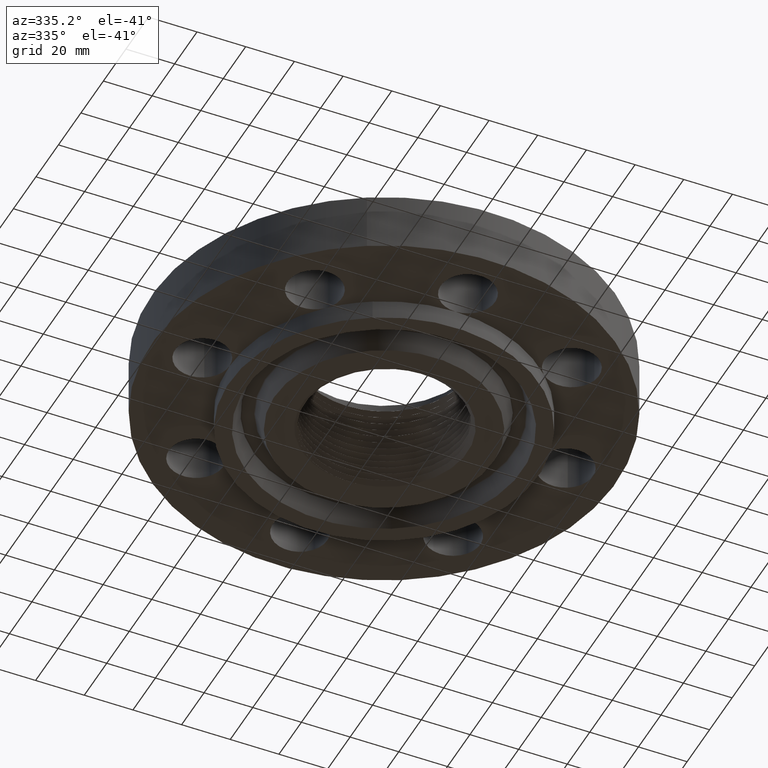
[diagram: clean part render]
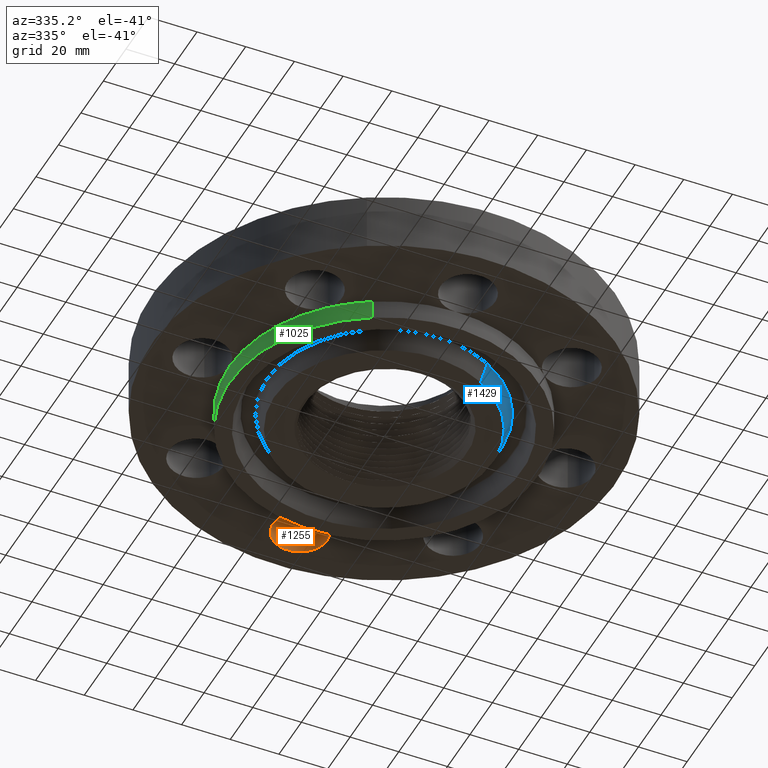
[diagram: same view with three faces highlighted in distinct colors, each labeled with its STEP entity id]
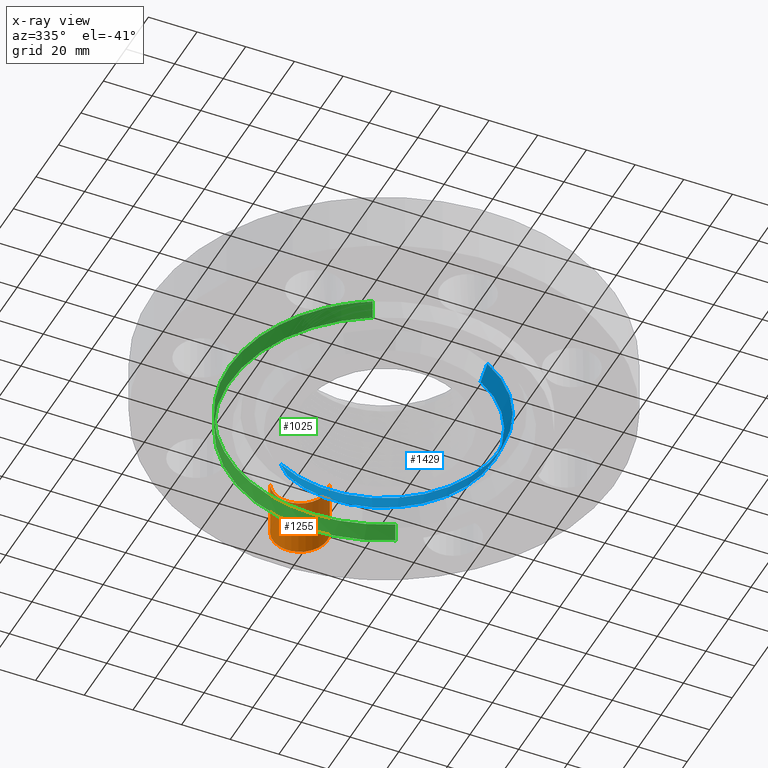
[diagram: x-ray of the same camera — body ghosted, the three highlighted faces saturated]
A machine part, auxiliary view with three faces highlighted in distinct colors.
The next image is the same camera in x-ray (body ghosted, the three faces saturated) — at least one of them is partly hidden behind the body in this view.
Their STEP definitions:

[orange] entity #1255 — the highlighted cylindrical surface (edge-blend (fillet) strip) has radius 11.176 mm, axis along (0, -0, -1).
#905=AXIS2_PLACEMENT_3D('Circle Axis2P3D',#903,#904,$) ;
#1215=AXIS2_PLACEMENT_3D('Cylinder Axis2P3D',#1212,#1213,#1214) ;
#1246=AXIS2_PLACEMENT_3D('Circle Axis2P3D',#1244,#1245,$) ;
#900=CARTESIAN_POINT('Vertex',(0.386136327233,2.72905276303,0.)) ;
#903=CARTESIAN_POINT('Axis2P3D Location',(8.74191357973E-017,2.94000000001,0.)) ;
#907=CARTESIAN_POINT('Vertex',(-0.386136327233,3.150947237,0.)) ;
#1212=CARTESIAN_POINT('Axis2P3D Location',(0.,2.94000000001,0.93606299213)) ;
#1217=CARTESIAN_POINT('Line Origine',(0.386136327233,2.72905276303,0.470000000002)) ;
#1221=CARTESIAN_POINT('Vertex',(0.386136327233,2.72905276303,0.940000000004)) ;
#1224=CARTESIAN_POINT('Line Origine',(-0.386136327233,3.150947237,0.470000000002)) ;
#1228=CARTESIAN_POINT('Vertex',(-0.386136327233,3.150947237,0.940000000004)) ;
#1244=CARTESIAN_POINT('Axis2P3D Location',(0.,2.94000000001,0.940000000004)) ;
#904=DIRECTION('Axis2P3D Direction',(0.,0.,-0.0393700787402)) ;
#1213=DIRECTION('Axis2P3D Direction',(0.,-0.,-0.0393700787402)) ;
#1214=DIRECTION('Axis2P3D XDirection',(-0.0345504945626,0.0188750212049,0.)) ;
#1218=DIRECTION('Vector Direction',(0.,0.,-0.0393700787402)) ;
#1225=DIRECTION('Vector Direction',(0.,0.,-0.0393700787402)) ;
#1245=DIRECTION('Axis2P3D Direction',(0.,-0.,-0.0393700787402)) ;
#1219=VECTOR('Line Direction',#1218,0.0393700787402) ;
#1226=VECTOR('Line Direction',#1225,0.0393700787402) ;
#1250=ORIENTED_EDGE('',*,*,#1230,.F.) ;
#1251=ORIENTED_EDGE('',*,*,#909,.T.) ;
#1252=ORIENTED_EDGE('',*,*,#1223,.T.) ;
#1253=ORIENTED_EDGE('',*,*,#1248,.F.) ;
#1255=ADVANCED_FACE('PartBody',(#1254),#1216,.F.) ;
#906=CIRCLE('generated circle',#905,0.440000000002) ;
#1247=CIRCLE('generated circle',#1246,0.440000000002) ;
#1216=CYLINDRICAL_SURFACE('generated cylinder',#1215,0.440000000002) ;
#909=EDGE_CURVE('',#908,#901,#906,.T.) ;
#1223=EDGE_CURVE('',#901,#1222,#1220,.F.) ;
#1230=EDGE_CURVE('',#908,#1229,#1227,.F.) ;
#1248=EDGE_CURVE('',#1229,#1222,#1247,.T.) ;
#1249=EDGE_LOOP('',(#1250,#1251,#1252,#1253)) ;
#1254=FACE_OUTER_BOUND('',#1249,.T.) ;
#1220=LINE('Line',#1217,#1219) ;
#1227=LINE('Line',#1224,#1226) ;
#901=VERTEX_POINT('',#900) ;
#908=VERTEX_POINT('',#907) ;
#1222=VERTEX_POINT('',#1221) ;
#1229=VERTEX_POINT('',#1228) ;

[blue] entity #1429 — the highlighted conical surface has half-angle 23 deg.
#187=AXIS2_PLACEMENT_3D('Circle Axis2P3D',#185,#186,$) ;
#1379=AXIS2_PLACEMENT_3D('Circle Axis2P3D',#1377,#1378,$) ;
#1411=AXIS2_PLACEMENT_3D('Cone Axis2P3D',#1408,#1409,#1410) ;
#185=CARTESIAN_POINT('Axis2P3D Location',(-1.39870617276E-016,0.,-0.312500000001)) ;
#189=CARTESIAN_POINT('Vertex',(-0.846473730963,1.54945977128,-0.312500000001)) ;
#191=CARTESIAN_POINT('Vertex',(0.846473730963,-1.54945977128,-0.312500000001)) ;
#1374=CARTESIAN_POINT('Vertex',(0.906187905915,-1.65876583534,-0.0190701156784)) ;
#1377=CARTESIAN_POINT('Axis2P3D Location',(0.,0.,-0.0190701156784)) ;
#1381=CARTESIAN_POINT('Vertex',(-0.906187905915,1.65876583534,-0.0190701156784)) ;
#1408=CARTESIAN_POINT('Axis2P3D Location',(0.,0.,-0.372500000001)) ;
#1413=CARTESIAN_POINT('Line Origine',(-0.876330818439,1.60411280331,-0.16578505784)) ;
#1418=CARTESIAN_POINT('Line Origine',(0.876330818439,-1.60411280331,-0.16578505784)) ;
#186=DIRECTION('Axis2P3D Direction',(0.,0.,-0.0393700787402)) ;
#1378=DIRECTION('Axis2P3D Direction',(0.,0.,0.0393700787402)) ;
#1409=DIRECTION('Axis2P3D Direction',(0.,0.,0.0393700787402)) ;
#1410=DIRECTION('Axis2P3D XDirection',(-0.0188750212049,0.0345504945626,0.)) ;
#1414=DIRECTION('Vector Direction',(-0.00737505833565,0.0134999537303,0.0362403485611)) ;
#1419=DIRECTION('Vector Direction',(0.00737505833565,-0.0134999537303,0.0362403485611)) ;
#1415=VECTOR('Line Direction',#1414,0.0393700787402) ;
#1420=VECTOR('Line Direction',#1419,0.0393700787402) ;
#1424=ORIENTED_EDGE('',*,*,#1417,.F.) ;
#1425=ORIENTED_EDGE('',*,*,#1383,.F.) ;
#1426=ORIENTED_EDGE('',*,*,#1422,.T.) ;
#1427=ORIENTED_EDGE('',*,*,#193,.F.) ;
#1429=ADVANCED_FACE('PartBody',(#1428),#1412,.T.) ;
#188=CIRCLE('generated circle',#187,1.76560000001) ;
#1380=CIRCLE('generated circle',#1379,1.89015359623) ;
#1412=CONICAL_SURFACE('Cone',#1411,1.74013151103,0.401425727959) ;
#193=EDGE_CURVE('',#190,#192,#188,.T.) ;
#1383=EDGE_CURVE('',#1375,#1382,#1380,.T.) ;
#1417=EDGE_CURVE('',#1382,#190,#1416,.F.) ;
#1422=EDGE_CURVE('',#1375,#192,#1421,.F.) ;
#1423=EDGE_LOOP('',(#1424,#1425,#1426,#1427)) ;
#1428=FACE_OUTER_BOUND('',#1423,.T.) ;
#1416=LINE('Line',#1413,#1415) ;
#1421=LINE('Line',#1418,#1420) ;
#190=VERTEX_POINT('',#189) ;
#192=VERTEX_POINT('',#191) ;
#1375=VERTEX_POINT('',#1374) ;
#1382=VERTEX_POINT('',#1381) ;

[green] entity #1025 — the highlighted cylindrical surface (partial cylindrical patch) has radius 63.5 mm, axis along (0, 0, -1).
#373=AXIS2_PLACEMENT_3D('Circle Axis2P3D',#371,#372,$) ;
#891=AXIS2_PLACEMENT_3D('Circle Axis2P3D',#889,#890,$) ;
#917=AXIS2_PLACEMENT_3D('Circle Axis2P3D',#915,#916,$) ;
#922=AXIS2_PLACEMENT_3D('Circle Axis2P3D',#920,#921,$) ;
#927=AXIS2_PLACEMENT_3D('Circle Axis2P3D',#925,#926,$) ;
#932=AXIS2_PLACEMENT_3D('Circle Axis2P3D',#930,#931,$) ;
#992=AXIS2_PLACEMENT_3D('Cylinder Axis2P3D',#989,#990,#991) ;
#366=CARTESIAN_POINT('Vertex',(1.19856384652,2.19395640473,-0.312500000001)) ;
#368=CARTESIAN_POINT('Vertex',(-1.19856384652,-2.19395640473,-0.312500000001)) ;
#371=CARTESIAN_POINT('Axis2P3D Location',(0.,0.,-0.312500000001)) ;
#482=CARTESIAN_POINT('Vertex',(-1.76776695297,-1.76776695297,0.)) ;
#547=CARTESIAN_POINT('Vertex',(-2.50000000001,-8.39223703654E-016,0.)) ;
#742=CARTESIAN_POINT('Vertex',(-1.76776695297,1.76776695297,0.)) ;
#886=CARTESIAN_POINT('Vertex',(1.19856384652,2.19395640473,1.39870617276E-016)) ;
#889=CARTESIAN_POINT('Axis2P3D Location',(0.,0.,0.)) ;
#893=CARTESIAN_POINT('Vertex',(7.81021824778E-015,2.50000000001,1.39870617276E-016)) ;
#915=CARTESIAN_POINT('Axis2P3D Location',(0.,0.,0.)) ;
#920=CARTESIAN_POINT('Axis2P3D Location',(0.,0.,0.)) ;
#925=CARTESIAN_POINT('Axis2P3D Location',(0.,0.,0.)) ;
#930=CARTESIAN_POINT('Axis2P3D Location',(0.,0.,0.)) ;
#934=CARTESIAN_POINT('Vertex',(-1.19856384652,-2.19395640473,1.39870617276E-016)) ;
#989=CARTESIAN_POINT('Axis2P3D Location',(0.,0.,0.563750000002)) ;
#994=CARTESIAN_POINT('Line Origine',(1.19856384652,2.19395640473,-0.156250000001)) ;
#999=CARTESIAN_POINT('Line Origine',(-1.19856384652,-2.19395640473,-0.156250000001)) ;
#372=DIRECTION('Axis2P3D Direction',(0.,0.,-0.0393700787402)) ;
#890=DIRECTION('Axis2P3D Direction',(0.,0.,-0.0393700787402)) ;
#916=DIRECTION('Axis2P3D Direction',(0.,0.,-0.0393700787402)) ;
#921=DIRECTION('Axis2P3D Direction',(0.,0.,-0.0393700787402)) ;
#926=DIRECTION('Axis2P3D Direction',(0.,0.,-0.0393700787402)) ;
#931=DIRECTION('Axis2P3D Direction',(0.,0.,-0.0393700787402)) ;
#990=DIRECTION('Axis2P3D Direction',(0.,0.,-0.0393700787402)) ;
#991=DIRECTION('Axis2P3D XDirection',(-0.0188750212049,-0.0345504945626,0.)) ;
#995=DIRECTION('Vector Direction',(0.,0.,-0.0393700787402)) ;
#1000=DIRECTION('Vector Direction',(0.,0.,-0.0393700787402)) ;
#996=VECTOR('Line Direction',#995,0.0393700787402) ;
#1001=VECTOR('Line Direction',#1000,0.0393700787402) ;
#1016=ORIENTED_EDGE('',*,*,#375,.F.) ;
#1017=ORIENTED_EDGE('',*,*,#1003,.T.) ;
#1018=ORIENTED_EDGE('',*,*,#936,.T.) ;
#1019=ORIENTED_EDGE('',*,*,#929,.T.) ;
#1020=ORIENTED_EDGE('',*,*,#924,.T.) ;
#1021=ORIENTED_EDGE('',*,*,#919,.T.) ;
#1022=ORIENTED_EDGE('',*,*,#895,.T.) ;
#1023=ORIENTED_EDGE('',*,*,#998,.F.) ;
#1025=ADVANCED_FACE('PartBody',(#1024),#993,.T.) ;
#374=CIRCLE('generated circle',#373,2.50000000001) ;
#892=CIRCLE('generated circle',#891,2.50000000001) ;
#918=CIRCLE('generated circle',#917,2.50000000001) ;
#923=CIRCLE('generated circle',#922,2.50000000001) ;
#928=CIRCLE('generated circle',#927,2.50000000001) ;
#933=CIRCLE('generated circle',#932,2.50000000001) ;
#993=CYLINDRICAL_SURFACE('generated cylinder',#992,2.50000000001) ;
#375=EDGE_CURVE('',#369,#367,#374,.T.) ;
#895=EDGE_CURVE('',#894,#887,#892,.T.) ;
#919=EDGE_CURVE('',#743,#894,#918,.T.) ;
#924=EDGE_CURVE('',#548,#743,#923,.T.) ;
#929=EDGE_CURVE('',#483,#548,#928,.T.) ;
#936=EDGE_CURVE('',#935,#483,#933,.T.) ;
#998=EDGE_CURVE('',#367,#887,#997,.F.) ;
#1003=EDGE_CURVE('',#369,#935,#1002,.F.) ;
#1015=EDGE_LOOP('',(#1016,#1017,#1018,#1019,#1020,#1021,#1022,#1023)) ;
#1024=FACE_OUTER_BOUND('',#1015,.T.) ;
#997=LINE('Line',#994,#996) ;
#1002=LINE('Line',#999,#1001) ;
#367=VERTEX_POINT('',#366) ;
#369=VERTEX_POINT('',#368) ;
#483=VERTEX_POINT('',#482) ;
#548=VERTEX_POINT('',#547) ;
#743=VERTEX_POINT('',#742) ;
#887=VERTEX_POINT('',#886) ;
#894=VERTEX_POINT('',#893) ;
#935=VERTEX_POINT('',#934) ;